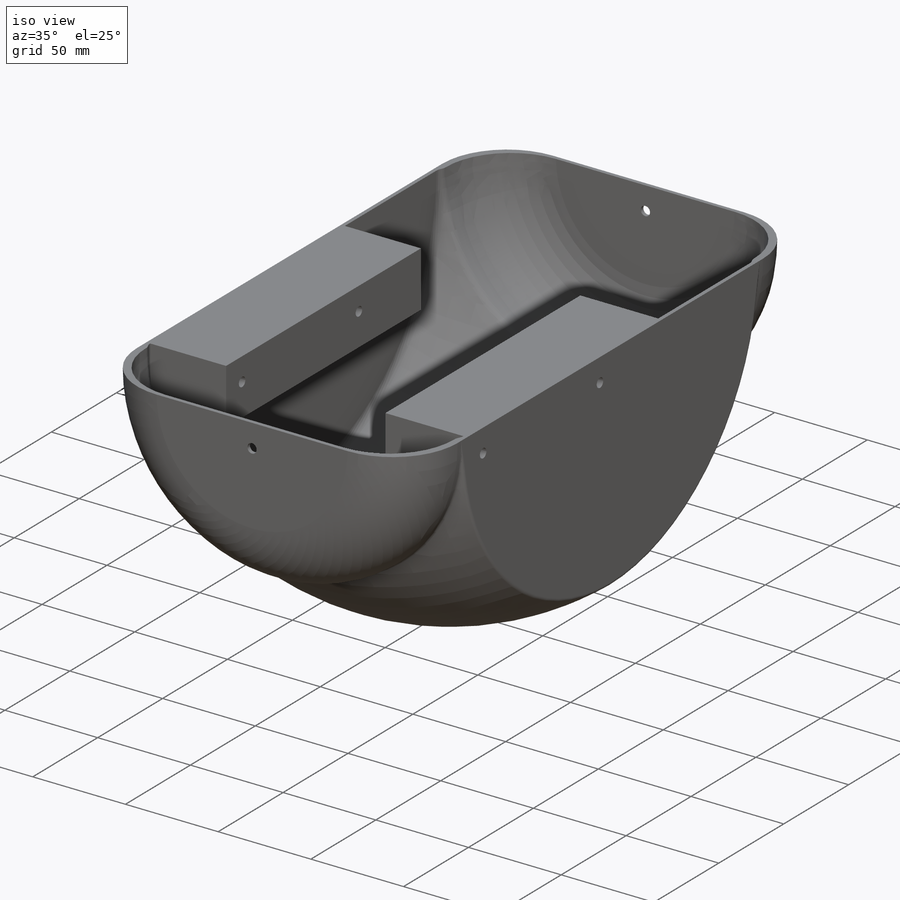
[diagram: iso view]
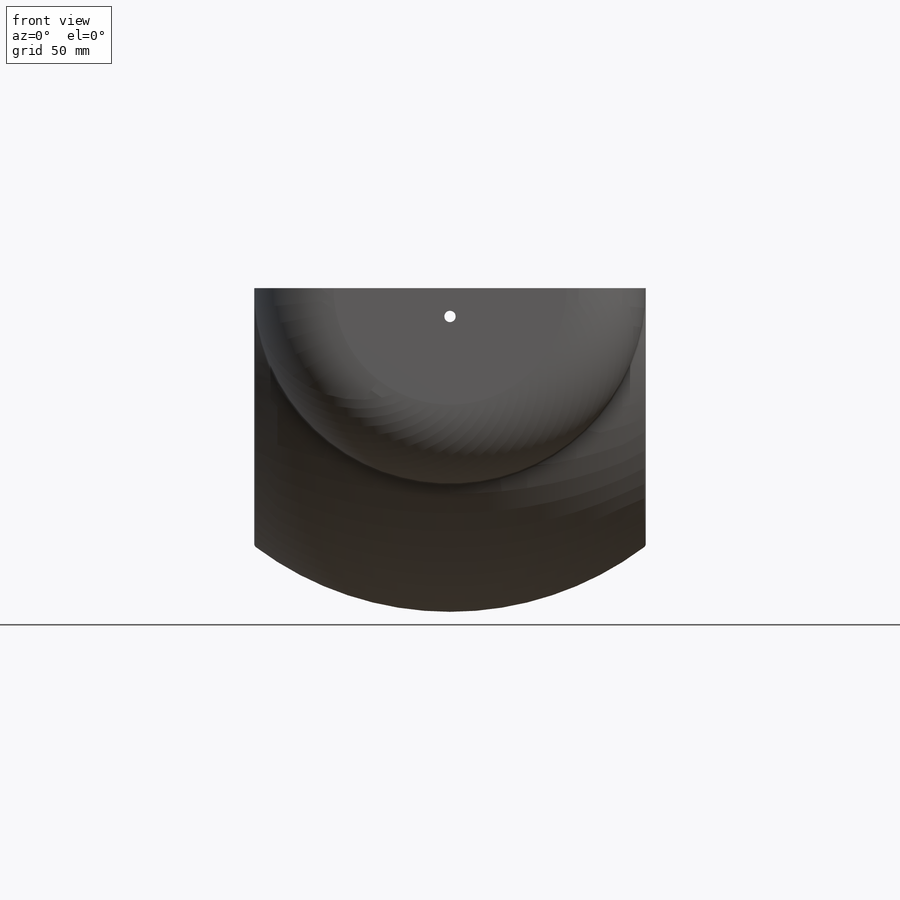
[diagram: front view]
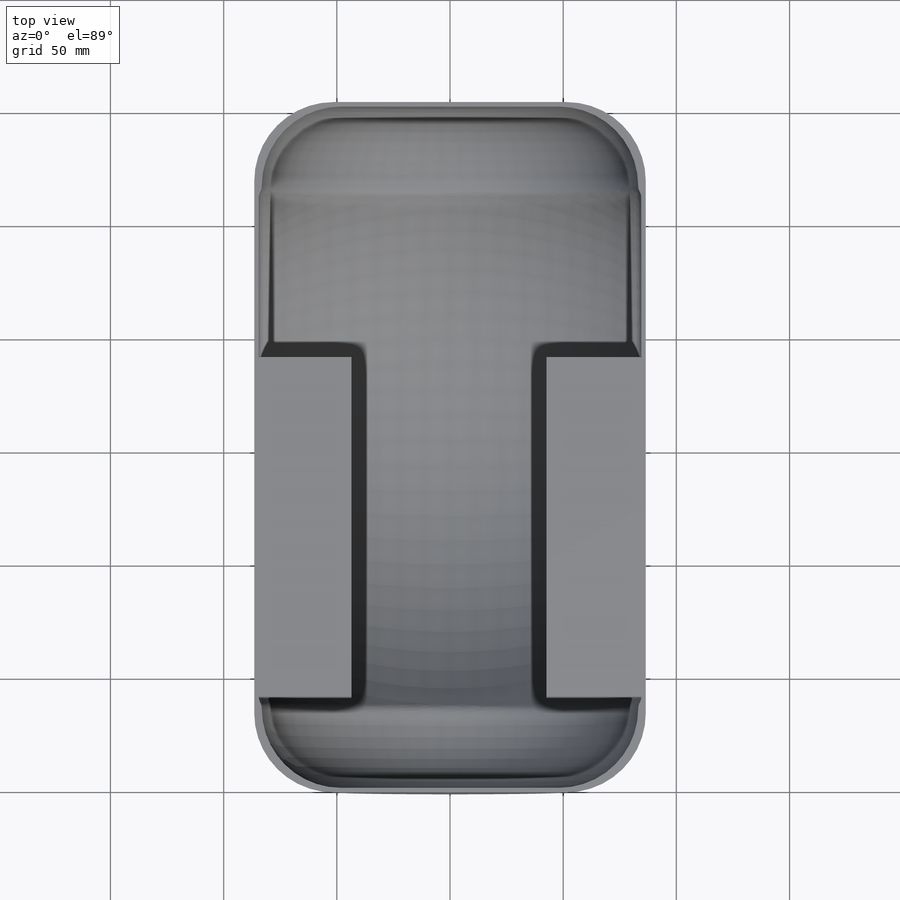
[diagram: top view]
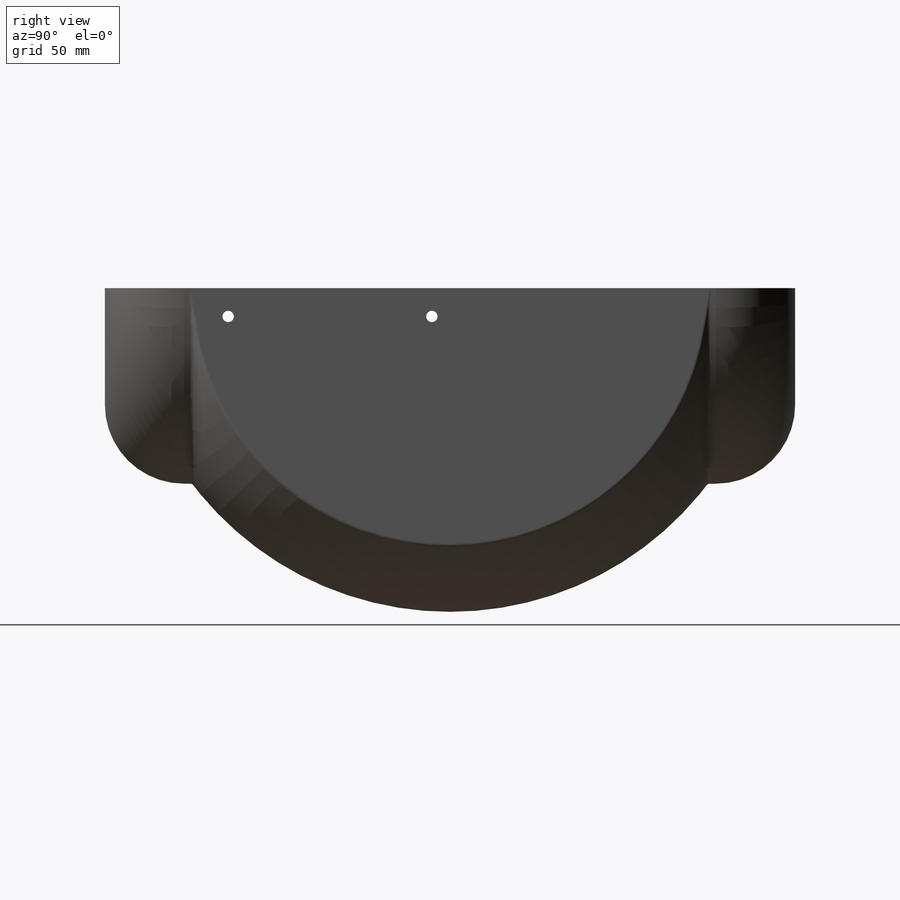
[diagram: right view]
SOLIDWORKS PART (.sldprt)
format: sldprt  version: not decoded by parser v0  size: 507,904 bytes
history: native  units: mm
features: sketch x11, fillet x7, cut_extrude x5, extrude x5, material x1, revolve x1 (+16 scaffold rows collapsed)
feature tree (46):
  scaffold x16  (default folders/planes/origin — collapsed)
  material  "Material <not specified>"
  sketch  "Sketch2"  dims[D1=84.5mm D2=84.5mm]
  revolve  "Revolve1"  Angle=360deg
  sketch  "Sketch3"  dims[D1=200.0mm]
  cut_extrude  "Extrude1"  [1 undecoded]
  sketch  "Sketch4"  dims[D1=173.0mm D2=86.5mm D3=150.5mm D4=301.0mm]
  cut_extrude  "Extrude4"  [1 undecoded]
  sketch  "Sketch5"
  cut_extrude  "Extrude5"  [1 undecoded]
  sketch  "Sketch6"  dims[D1=85.0mm]
  extrude  "Extrude6"  Depth=38.63mm
  sketch  "Sketch7"  dims[D1=85.0mm]
  extrude  "Extrude7"  Depth=38.63mm
  sketch  "Sketch9"
  extrude  "Extrude8"  Depth=2mm
  sketch  "Sketch10"
  extrude  "Extrude9"  Depth=2mm
  fillet  "Fillet1"  Radius=2mm
  fillet  "Fillet2"  Radius=2mm
  fillet  "Fillet3"  Radius=5mm
  fillet  "Fillet4"  Radius=5mm
  fillet  "Fillet5"  Radius=35mm
  fillet  "Fillet6"  Radius=35mm
  fillet  "Fillet7"  Radius=35mm
  sketch  "Sketch11"  dims[D1=150.0mm D2=150.0mm D3=41.0mm D4=42.0mm D5=45.0mm]
  extrude  "Extrude10"  Depth=30mm
  sketch  "Sketch12"  dims[D2=5.0mm D1=12.5mm]
  cut_extrude  "Extrude11"  [1 undecoded]
  sketch  "Sketch13"  dims[D1=5.0mm D2=5.0mm D3=12.5mm D4=12.5mm D5=54.5mm D6=144.5mm D7=95.0mm]
  cut_extrude  "Extrude12"  [1 undecoded]
decode coverage: 21 of 29 modeling features carry decoded parameters
note: 5 parameter values undecoded
summary: no parameter record found for 5 features
note: suppression state not decoded; provenance and decode notes live in map.json
